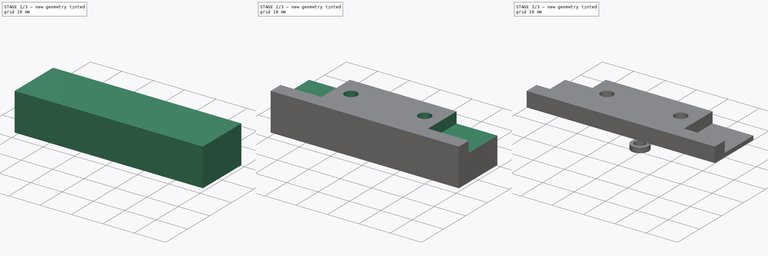
[diagram: build sequence overview — one tinted view per stage of 3, left to right]
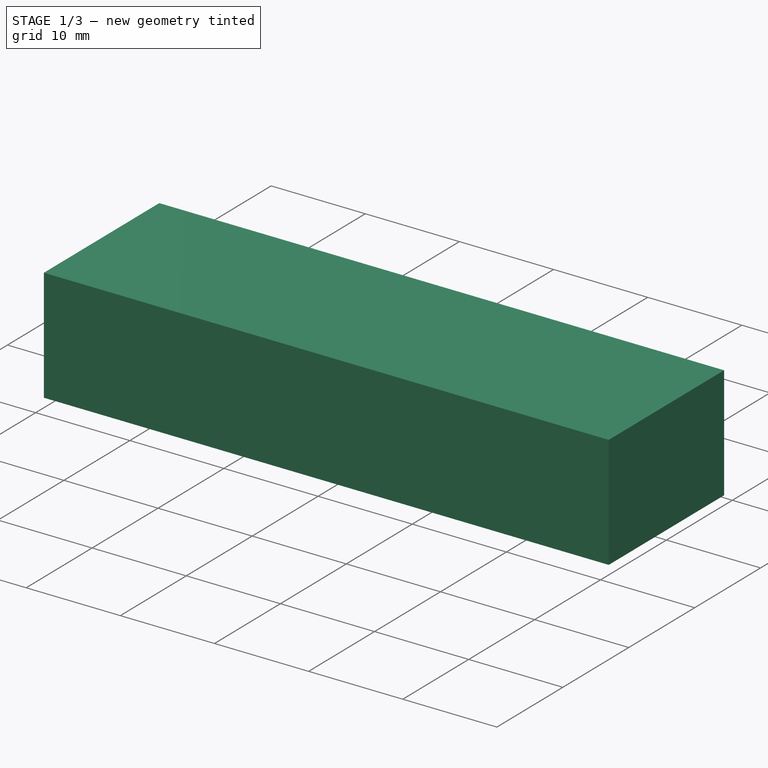
[diagram: stage 1 of 3 — iso view after this stage's code; geometry added in this stage tinted green]
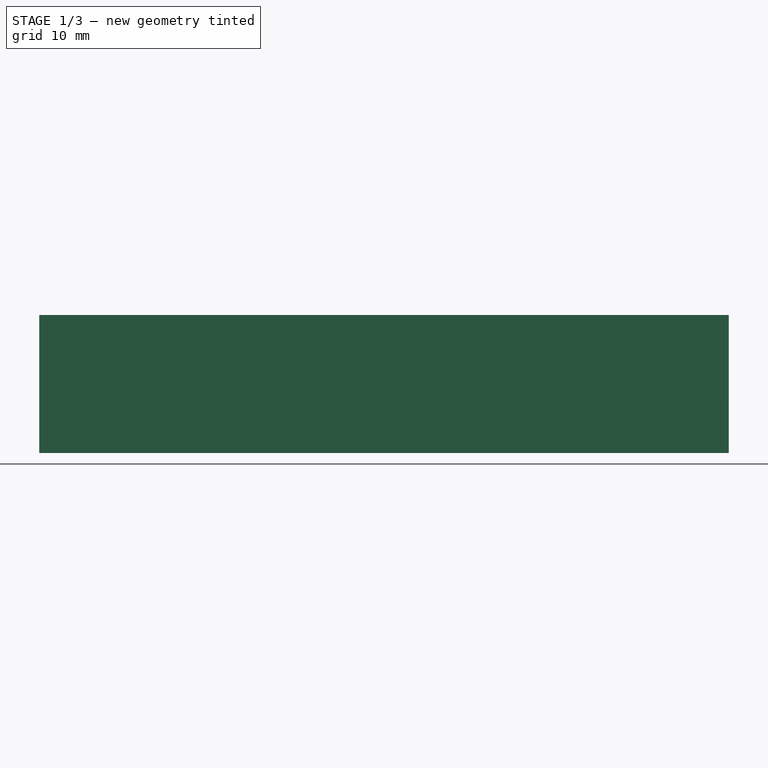
[diagram: stage 1 of 3 — front view after this stage's code; geometry added in this stage tinted green]
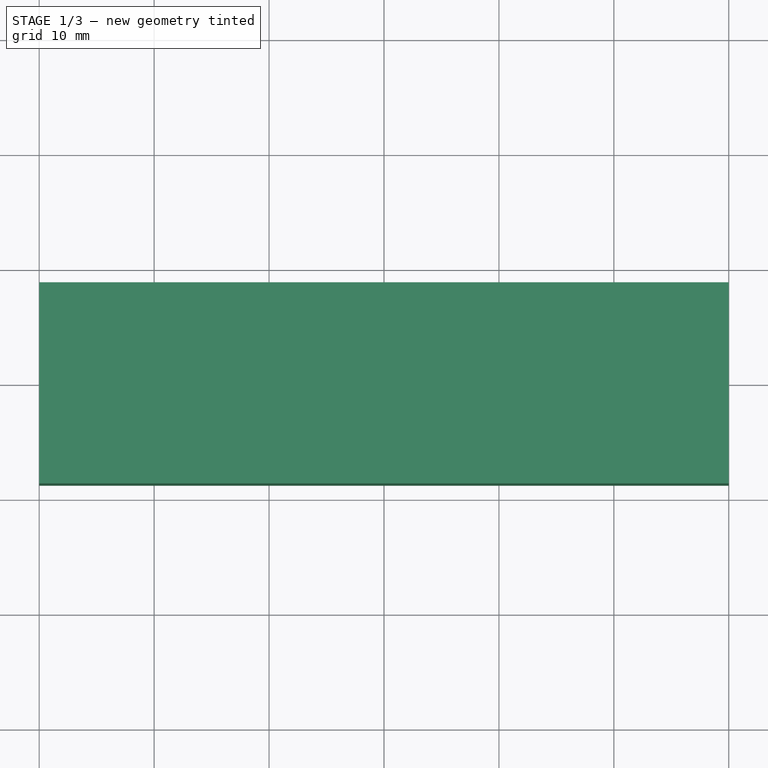
[diagram: stage 1 of 3 — top view after this stage's code; geometry added in this stage tinted green]
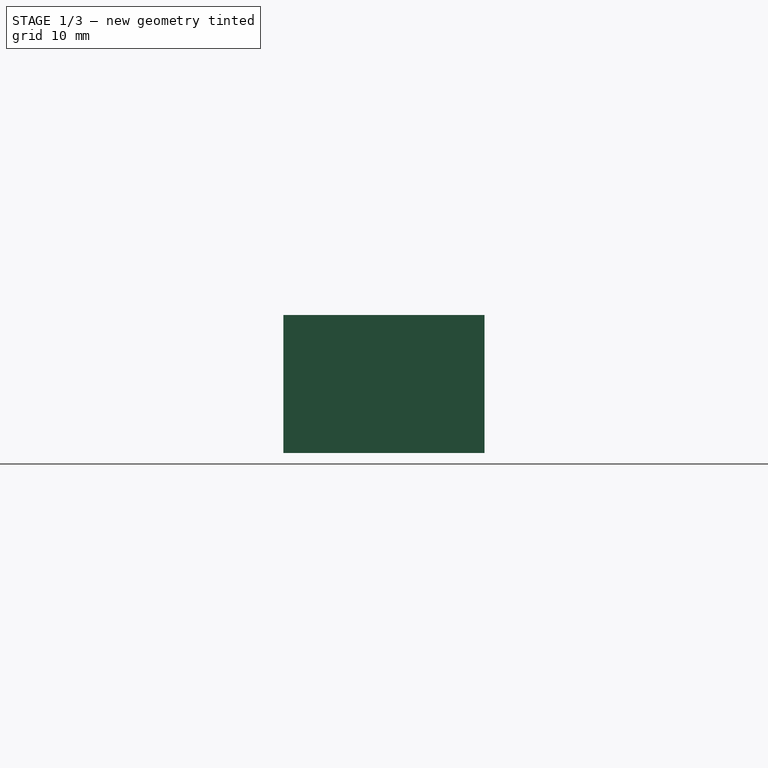
[diagram: stage 1 of 3 — right view after this stage's code; geometry added in this stage tinted green]
FCSTD DOCUMENT  (FreeCAD 0.22R36331 (Git))
Label: kusba mount
License: All rights reserved
LicenseURL: https://en.wikipedia.org/wiki/All_rights_reserved
objects: Sketcher::SketchObject×8, PartDesign::Pocket×6, PartDesign::Pad×2, PartDesign::Body×2
note: 26 computed .brp shape members not serialized (recipe doc carries the construction recipe); baked Part::Feature solids carry a one-line shape summary decoded from their .brp

FEATURE [Sketcher::SketchObject] Sketch
  AttachmentSupport = -> [XY_Plane]
  FullyConstrained = true
  MapMode = 5
  sketch-geometry (4):
    g0: LineSegment StartX=-30 StartY=8.75 StartZ=0 EndX=-30 EndY=-8.75 EndZ=0
    g1: LineSegment StartX=-30 StartY=-8.75 StartZ=0 EndX=30 EndY=-8.75 EndZ=0
    g2: LineSegment StartX=30 StartY=-8.75 StartZ=0 EndX=30 EndY=8.75 EndZ=0
    g3: LineSegment StartX=30 StartY=8.75 StartZ=0 EndX=-30 EndY=8.75 EndZ=0
  constraints (11):
    c: Coincident(g0,g1)
    c: Coincident(g1,g2)
    c: Coincident(g2,g3)
    c: Coincident(g3,g0)
    c: Vertical(g0)
    c: Vertical(g2)
    c: Horizontal(g1)
    c: Horizontal(g3)
    c: DistanceY(g2,g2) = 17.5
    c: DistanceX(g3,g3) = 60
    c: Symmetric(g0,g1,g-1)
FEATURE [PartDesign::Pad] Pad
  Direction = (0,0,1)
  Length = 12
  Length2 = 10
  Profile = -> Sketch
  ReferenceAxis = -> Sketch [N_Axis]
  Suppressed = false
  Type = 0
FEATURE [PartDesign::Body] Body
  Group = -> [Sketch,Pad,Sketch001,Pocket,Sketch002,Pocket001,Sketch003,Pocket002,Sketch004,Pocket003,Sketch005,Pocket004]
  Origin = -> Origin
  Tip = -> Pocket004
FEATURE [Sketcher::SketchObject] Sketch006
  AttachmentSupport = -> [XY_Plane001]
  FullyConstrained = true
  MapMode = 5
  sketch-geometry (1):
    g0: Circle CenterX=0 CenterY=0 CenterZ=0 NormalX=0 NormalY=0 NormalZ=1 AngleXU=0 Radius=2.75
  constraints (2):
    c: Coincident(g0,g-1)
    c: Diameter(g0) = 5.5
FEATURE [PartDesign::Pad] Pad001
  Direction = (0,0,1)
  Length = 1.6
  Length2 = 10
  Profile = -> Sketch006
  ReferenceAxis = -> Sketch006 [N_Axis]
  Suppressed = false
  Type = 0
FEATURE [Sketcher::SketchObject] Sketch007
  AttachmentSupport = -> [Pad001]
  FullyConstrained = true
  MapMode = 5
  Placement = pos=(0,0,1.6) rot=(0,0,1;0rad)
  sketch-geometry (1):
    g0: Circle CenterX=0 CenterY=0 CenterZ=0 NormalX=0 NormalY=0 NormalZ=1 AngleXU=0 Radius=1.75
  constraints (2):
    c: Coincident(g0,g-1)
    c: Diameter(g0) = 3.5
FEATURE [PartDesign::Pocket] Pocket005
  BaseFeature = -> Pad001
  Direction = (0,0,-1)
  Length = 5
  Length2 = 5
  Profile = -> Sketch007
  ReferenceAxis = -> Sketch007 [N_Axis]
  Suppressed = false
  Type = 0
FEATURE [PartDesign::Body] Body001  label="Washer"
  Group = -> [Sketch006,Pad001,Sketch007,Pocket005]
  Origin = -> Origin001
  Tip = -> Pocket005
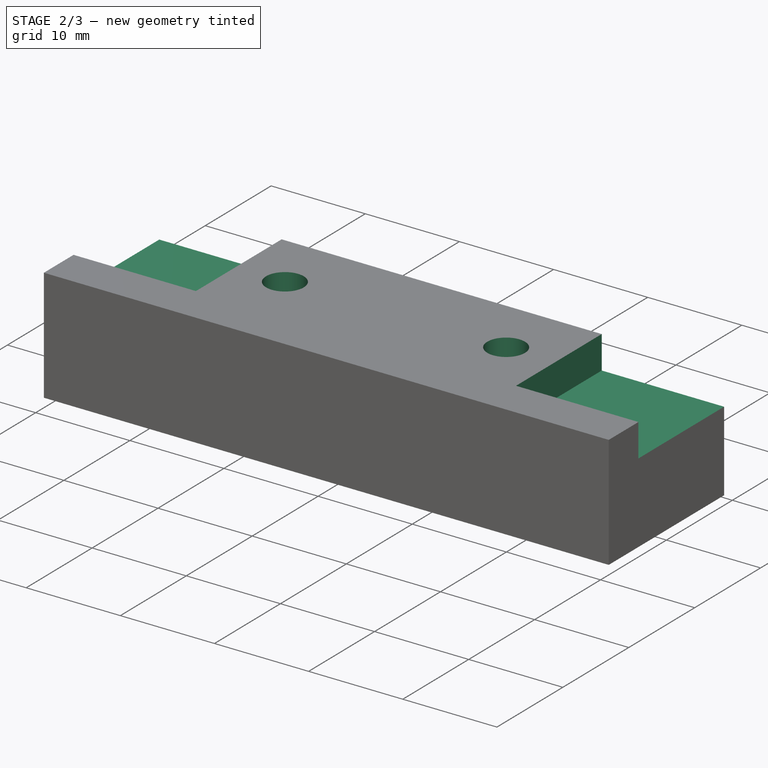
[diagram: stage 2 of 3 — iso view after this stage's code; geometry added in this stage tinted green]
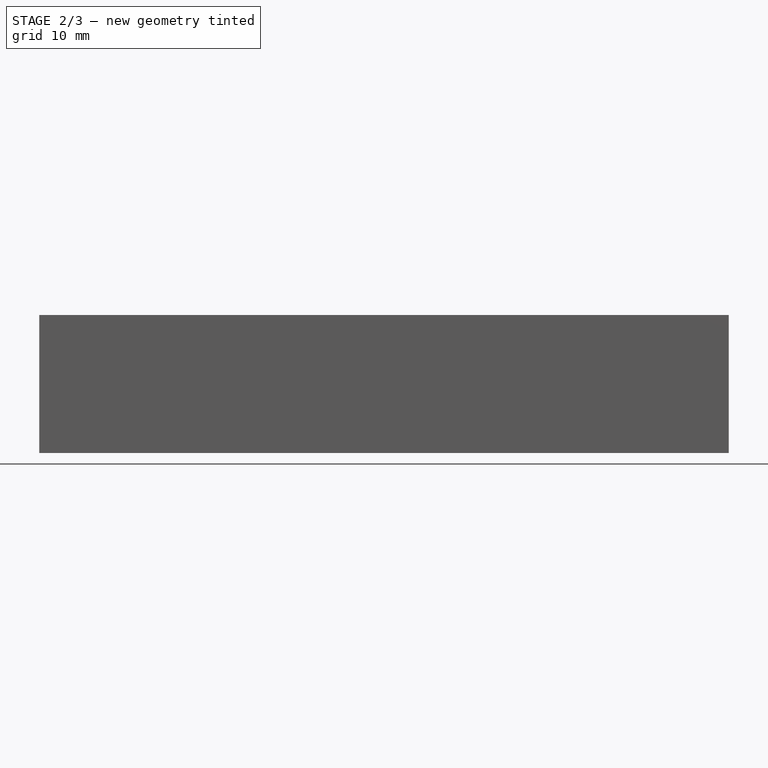
[diagram: stage 2 of 3 — front view after this stage's code; geometry added in this stage tinted green]
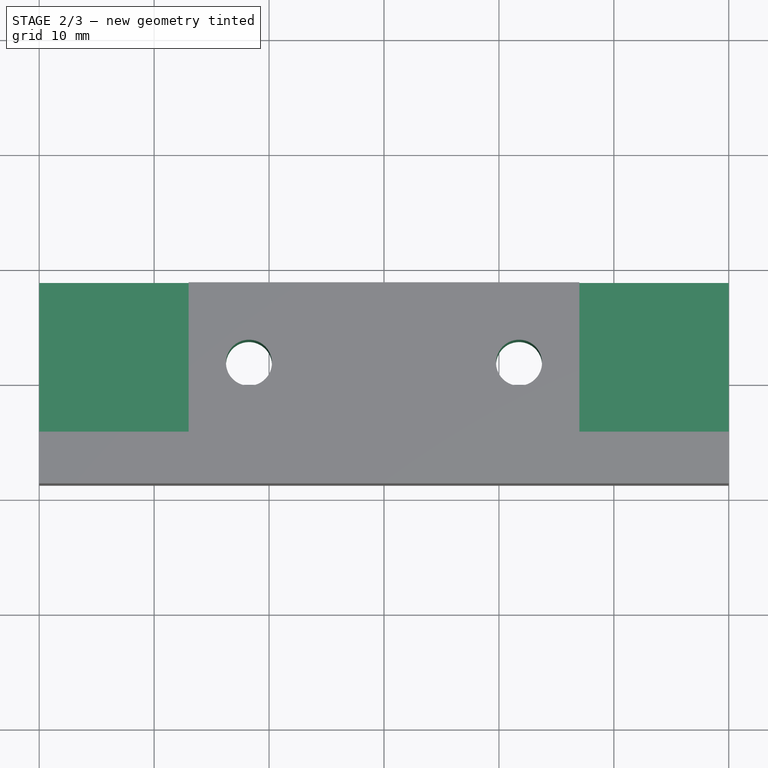
[diagram: stage 2 of 3 — top view after this stage's code; geometry added in this stage tinted green]
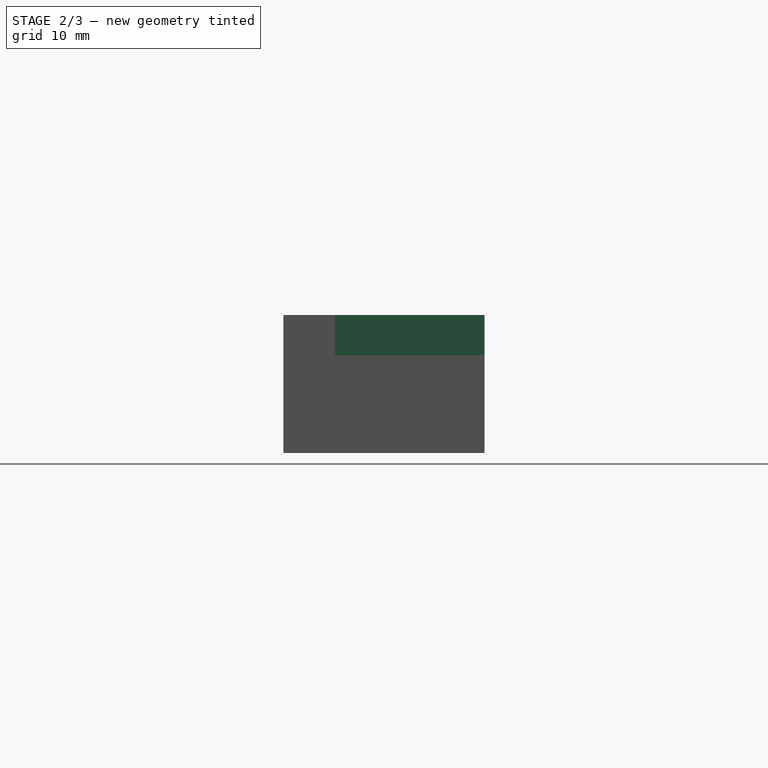
[diagram: stage 2 of 3 — right view after this stage's code; geometry added in this stage tinted green]
FEATURE [Sketcher::SketchObject] Sketch001
  AttachmentSupport = -> [Pad]
  ExternalGeometry = -> [Pad]
  FullyConstrained = true
  MapMode = 5
  Placement = pos=(0,0,12) rot=(0,0,1;0rad)
  sketch-geometry (2):
    g0: Circle CenterX=-11.75 CenterY=1.75 CenterZ=0 NormalX=0 NormalY=0 NormalZ=1 AngleXU=0 Radius=2
    g1: Circle CenterX=11.75 CenterY=1.75 CenterZ=0 NormalX=0 NormalY=0 NormalZ=1 AngleXU=0 Radius=2
  constraints (6):
    c: Diameter(g0) = 4
    c: Equal(g1,g0)
    c: DistanceX(g0,g-1) = 11.75
    c: DistanceX(g-1,g1) = 11.75
    c: DistanceY(g1,g-3) = 7
    c: DistanceY(g0,g-3) = 7
FEATURE [PartDesign::Pocket] Pocket
  BaseFeature = -> Pad
  Direction = (0,0,-1)
  Length = 5
  Length2 = 5
  Profile = -> Sketch001
  ReferenceAxis = -> Sketch001 [N_Axis]
  Suppressed = false
  Type = 1
FEATURE [Sketcher::SketchObject] Sketch002
  AttachmentSupport = -> [Pocket]
  ExternalGeometry = -> [Pocket]
  FullyConstrained = true
  MapMode = 5
  Placement = pos=(0,0,12) rot=(0,0,1;0rad)
  sketch-geometry (8):
    g0: LineSegment StartX=-30 StartY=8.75 StartZ=0 EndX=-30 EndY=-4.25 EndZ=0
    g1: LineSegment StartX=-30 StartY=-4.25 StartZ=0 EndX=-17 EndY=-4.25 EndZ=0
    g2: LineSegment StartX=-17 StartY=-4.25 StartZ=0 EndX=-17 EndY=8.75 EndZ=0
    g3: LineSegment StartX=-17 StartY=8.75 StartZ=0 EndX=-30 EndY=8.75 EndZ=0
    g4: LineSegment StartX=30 StartY=8.75 StartZ=0 EndX=17 EndY=8.75 EndZ=0
    g5: LineSegment StartX=17 StartY=8.75 StartZ=0 EndX=17 EndY=-4.25 EndZ=0
    g6: LineSegment StartX=17 StartY=-4.25 StartZ=0 EndX=30 EndY=-4.25 EndZ=0
    g7: LineSegment StartX=30 StartY=-4.25 StartZ=0 EndX=30 EndY=8.75 EndZ=0
  constraints (22):
    c: Coincident(g0,g1)
    c: Coincident(g1,g2)
    c: Coincident(g2,g3)
    c: Coincident(g3,g0)
    c: Vertical(g0)
    c: Vertical(g2)
    c: Horizontal(g1)
    c: Horizontal(g3)
    c: Coincident(g0,g-3)
    c: DistanceX(g1,g1) = 13
    c: DistanceY(g0,g0) = 13
    c: Coincident(g4,g5)
    c: Coincident(g5,g6)
    c: Coincident(g6,g7)
    c: Coincident(g7,g4)
    c: Horizontal(g4)
    c: Horizontal(g6)
    c: Vertical(g5)
    c: Vertical(g7)
    c: Coincident(g4,g-3)
    c: DistanceX(g6,g6) = 13
    c: Distance(g5,g5) = 13
FEATURE [PartDesign::Pocket] Pocket001
  BaseFeature = -> Pocket
  Direction = (0,0,-1)
  Length = 3.5
  Length2 = 5
  Profile = -> Sketch002
  ReferenceAxis = -> Sketch002 [N_Axis]
  Suppressed = false
  Type = 0
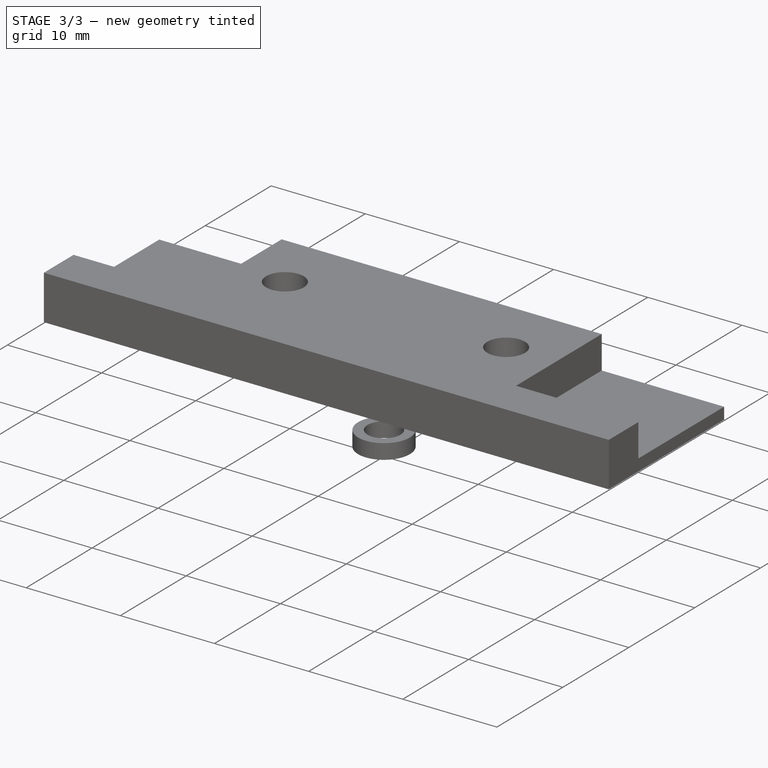
[diagram: stage 3 of 3 — iso view after this stage's code; geometry added in this stage tinted green]
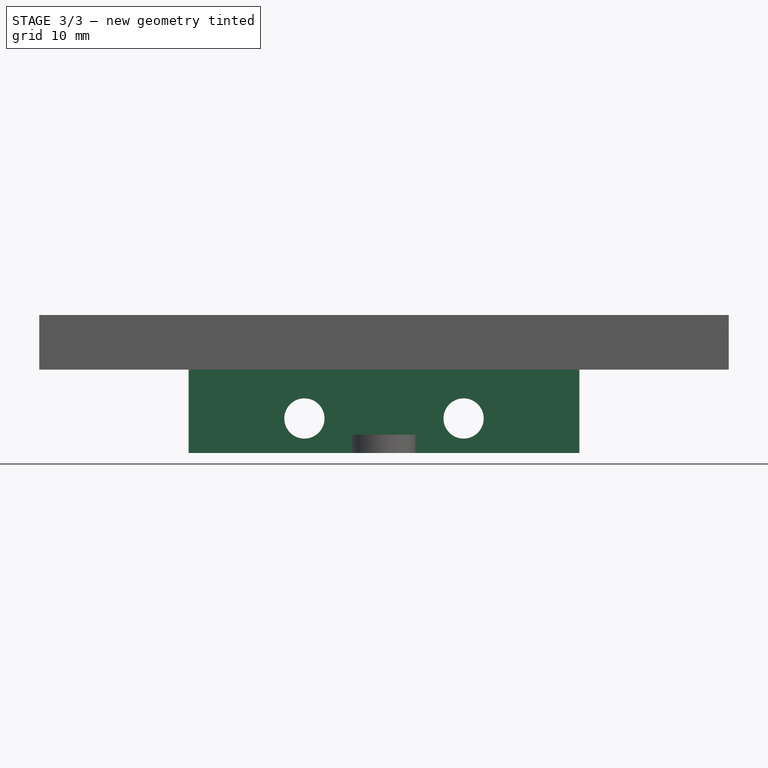
[diagram: stage 3 of 3 — front view after this stage's code; geometry added in this stage tinted green]
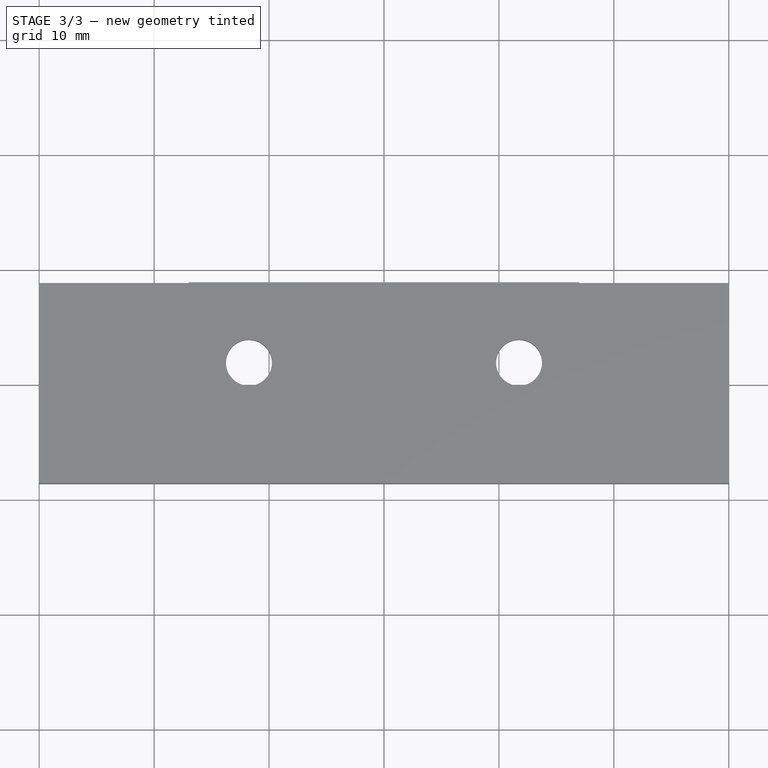
[diagram: stage 3 of 3 — top view after this stage's code; geometry added in this stage tinted green]
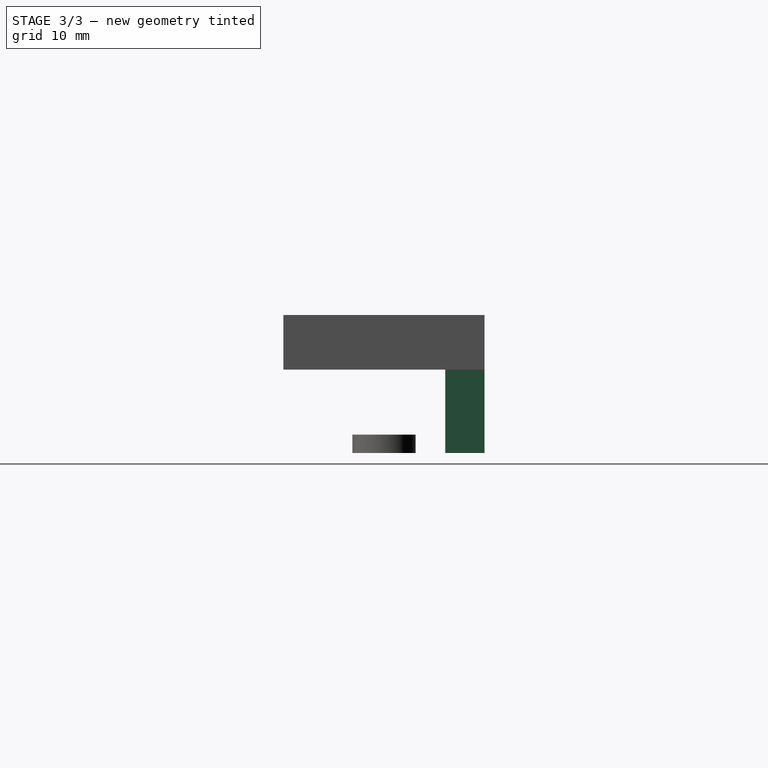
[diagram: stage 3 of 3 — right view after this stage's code; geometry added in this stage tinted green]
FEATURE [Sketcher::SketchObject] Sketch003
  AttachmentSupport = -> [Pocket001]
  ExternalGeometry = -> [Pocket001]
  FullyConstrained = false
  MapMode = 5
  Placement = pos=(0,0,0) rot=(1,0,0;3.14159rad)
  sketch-geometry (8):
    g0: LineSegment StartX=-30 StartY=8.75 StartZ=0 EndX=-30 EndY=-8.75 EndZ=0
    g1: LineSegment StartX=30 StartY=-8.75 StartZ=0 EndX=30 EndY=8.75 EndZ=0
    g2: LineSegment StartX=30 StartY=8.75 StartZ=0 EndX=-30 EndY=8.75 EndZ=0
    g3: LineSegment StartX=-30 StartY=-8.75 StartZ=0 EndX=-17 EndY=-8.75 EndZ=0
    g4: LineSegment StartX=-17 StartY=-8.75 StartZ=0 EndX=-17 EndY=-5.32545 EndZ=0
    g5: LineSegment StartX=-17 StartY=-5.32545 StartZ=0 EndX=17 EndY=-5.32545 EndZ=0
    g6: LineSegment StartX=17 StartY=-5.32545 StartZ=0 EndX=17 EndY=-8.75 EndZ=0
    g7: LineSegment StartX=17 StartY=-8.75 StartZ=0 EndX=30 EndY=-8.75 EndZ=0
  constraints (22):
    c: Coincident(g1,g2)
    c: Coincident(g2,g0)
    c: Vertical(g0)
    c: Vertical(g1)
    c: Horizontal(g2)
    c: Coincident(g0,g-3)
    c: DistanceX(g2,g2) = 60
    c: DistanceY(g0,g0) = 17.5
    c: Equal(g1,g0)
    c: Coincident(g0,g3)
    c: Horizontal(g3)
    c: Coincident(g3,g4)
    c: Coincident(g4,g5)
    c: Horizontal(g5)
    c: Coincident(g5,g6)
    c: Coincident(g6,g7)
    c: Coincident(g7,g1)
    c: Horizontal(g7)
    c: Vertical(g6)
    c: Vertical(g4)
    c: DistanceX(g3,g3) = 13
    c: Equal(g7,g3)
FEATURE [PartDesign::Pocket] Pocket002
  BaseFeature = -> Pocket001
  Direction = (0,0,1)
  Length = 7.25
  Length2 = 5
  Profile = -> Sketch003
  ReferenceAxis = -> Sketch003 [N_Axis]
  Suppressed = false
  Type = 0
FEATURE [Sketcher::SketchObject] Sketch004
  AttachmentSupport = -> [Pocket002]
  ExternalGeometry = -> [Pocket002]
  FullyConstrained = false
  MapMode = 5
  Placement = pos=(0,0,7.25) rot=(1,0,0;3.14159rad)
  sketch-geometry (14):
    g0: LineSegment StartX=-9.27198 StartY=-3.44098 StartZ=0 EndX=-9.04656 EndY=-0.449458 EndZ=0
    g1: LineSegment StartX=-9.04656 StartY=-0.449458 StartZ=0 EndX=-11.5246 EndY=1.24152 EndZ=0
    g2: LineSegment StartX=-11.5246 StartY=1.24152 StartZ=0 EndX=-14.228 EndY=-0.059023 EndZ=0
    g3: LineSegment StartX=-14.228 StartY=-0.059023 StartZ=0 EndX=-14.4534 EndY=-3.05054 EndZ=0
    g4: LineSegment StartX=-14.4534 StartY=-3.05054 StartZ=0 EndX=-11.9754 EndY=-4.74152 EndZ=0
    g5: LineSegment StartX=-11.9754 StartY=-4.74152 StartZ=0 EndX=-9.27198 EndY=-3.44098 EndZ=0
    g6: Circle CenterX=-11.75 CenterY=-1.75 CenterZ=0 NormalX=0 NormalY=0 NormalZ=1 AngleXU=0 Radius=3
    g7: LineSegment StartX=14.316 StartY=-3.30417 StartZ=0 EndX=14.379 EndY=-0.30483 EndZ=0
    g8: LineSegment StartX=14.379 StartY=-0.30483 StartZ=0 EndX=11.8129 EndY=1.24934 EndZ=0
    g9: LineSegment StartX=11.8129 StartY=1.24934 StartZ=0 EndX=9.18396 EndY=-0.19583 EndZ=0
    g10: LineSegment StartX=9.18396 StartY=-0.19583 StartZ=0 EndX=9.12103 EndY=-3.19517 EndZ=0
    g11: LineSegment StartX=9.12103 StartY=-3.19517 StartZ=0 EndX=11.6871 EndY=-4.74934 EndZ=0
    g12: LineSegment StartX=11.6871 StartY=-4.74934 StartZ=0 EndX=14.316 EndY=-3.30417 EndZ=0
    g13: Circle CenterX=11.75 CenterY=-1.75 CenterZ=0 NormalX=0 NormalY=0 NormalZ=1 AngleXU=0 Radius=3
  constraints (32):
    c: Coincident(g0,g1)
    c: Coincident(g1,g2)
    c: Coincident(g2,g3)
    c: Coincident(g3,g4)
    c: Coincident(g4,g5)
    c: Coincident(g5,g0)
    c: Equal(g0, g1-g5) x5
    c: PointOnObject(g0,g6)
    c: PointOnObject(g1,g6)
    c: PointOnObject(g2,g6)
    c: PointOnObject(g3,g6)
    c: PointOnObject(g4,g6)
    c: PointOnObject(g5,g6)
    c: Diameter(g6) = 6
    c: DistanceX(g6,g-1) = 11.75
    c: DistanceY(g-4,g6) = 7
    c: Coincident(g7,g8)
    c: Coincident(g8,g9)
    c: Coincident(g9,g10)
    c: Coincident(g10,g11)
    c: Coincident(g11,g12)
    c: Coincident(g12,g7)
    c: Equal(g7, g8-g12) x5
    c: PointOnObject(g7,g13)
    c: PointOnObject(g8,g13)
    c: PointOnObject(g9,g13)
    c: PointOnObject(g10,g13)
    c: PointOnObject(g11,g13)
    c: PointOnObject(g12,g13)
    c: Diameter(g13) = 6
    c: DistanceX(g-1,g13) = 11.75
    c: DistanceY(g-3,g13) = 7
FEATURE [PartDesign::Pocket] Pocket003
  BaseFeature = -> Pocket002
  Direction = (0,0,1)
  Length = 2
  Length2 = 5
  Profile = -> Sketch004
  ReferenceAxis = -> Sketch004 [N_Axis]
  Suppressed = false
  Type = 0
FEATURE [Sketcher::SketchObject] Sketch005
  AttachmentSupport = -> [Pocket003]
  ExternalGeometry = -> [Pocket003]
  FullyConstrained = true
  MapMode = 5
  Placement = pos=(0,5.32545,0) rot=(1,0,0;1.5708rad)
  sketch-geometry (2):
    g0: Circle CenterX=-6.925 CenterY=3 CenterZ=0 NormalX=0 NormalY=0 NormalZ=1 AngleXU=0 Radius=1.75
    g1: Circle CenterX=6.925 CenterY=3 CenterZ=0 NormalX=0 NormalY=0 NormalZ=1 AngleXU=0 Radius=1.75
  constraints (5):
    c: Diameter(g0) = 3.5
    c: Equal(g0,g1)
    c: DistanceX(g0,g1) = 13.85
    c: Symmetric(g0,g1,g-2)
    c: DistanceY(g-3,g0) = 3
FEATURE [PartDesign::Pocket] Pocket004
  BaseFeature = -> Pocket003
  Direction = (0,1,-2e-16)
  Length = 5
  Length2 = 5
  Profile = -> Sketch005
  ReferenceAxis = -> Sketch005 [N_Axis]
  Suppressed = false
  Type = 0
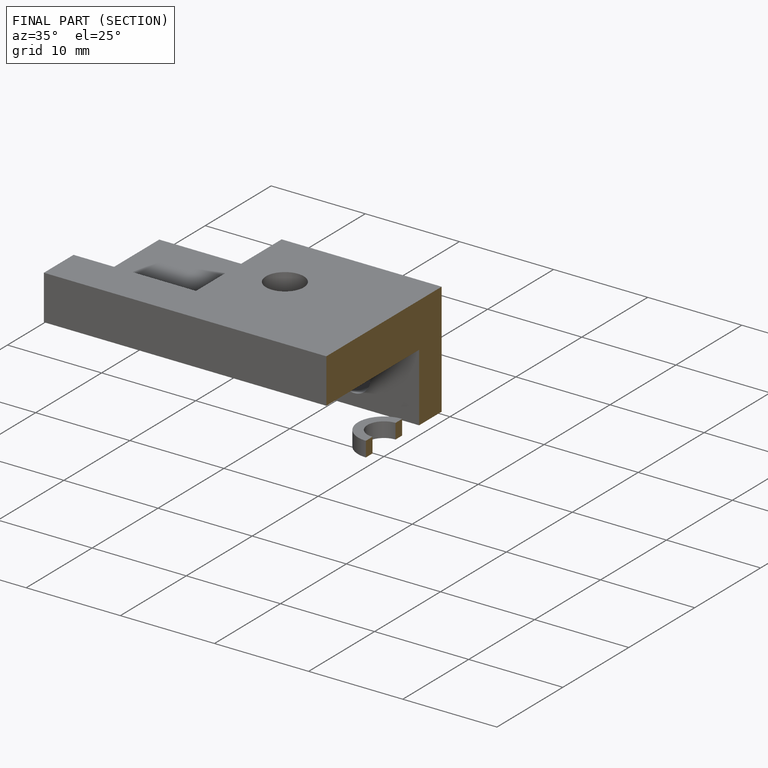
[diagram: finished part — half-section view (interior)]
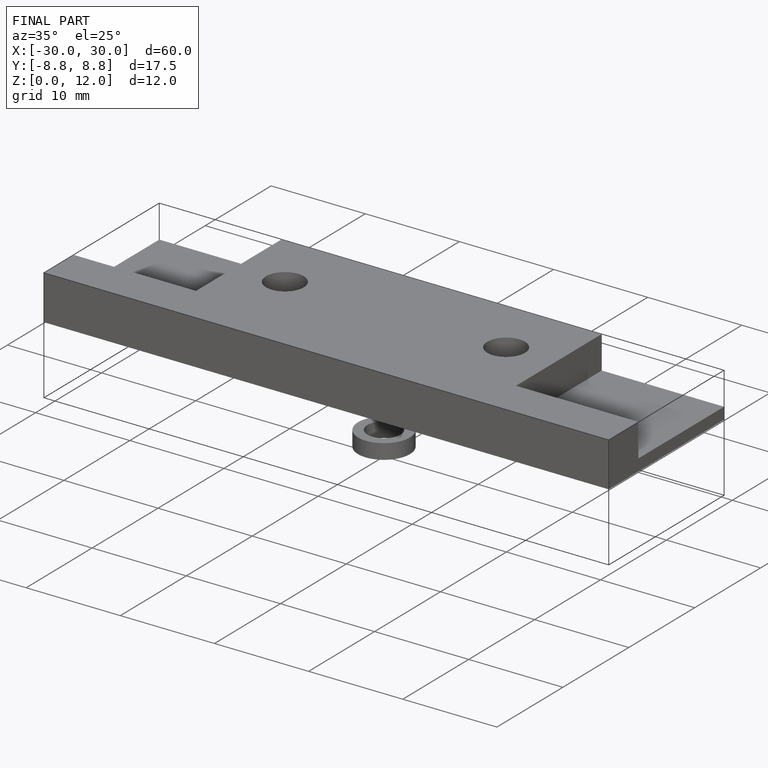
[diagram: finished part — iso view with bounding-box wireframe]
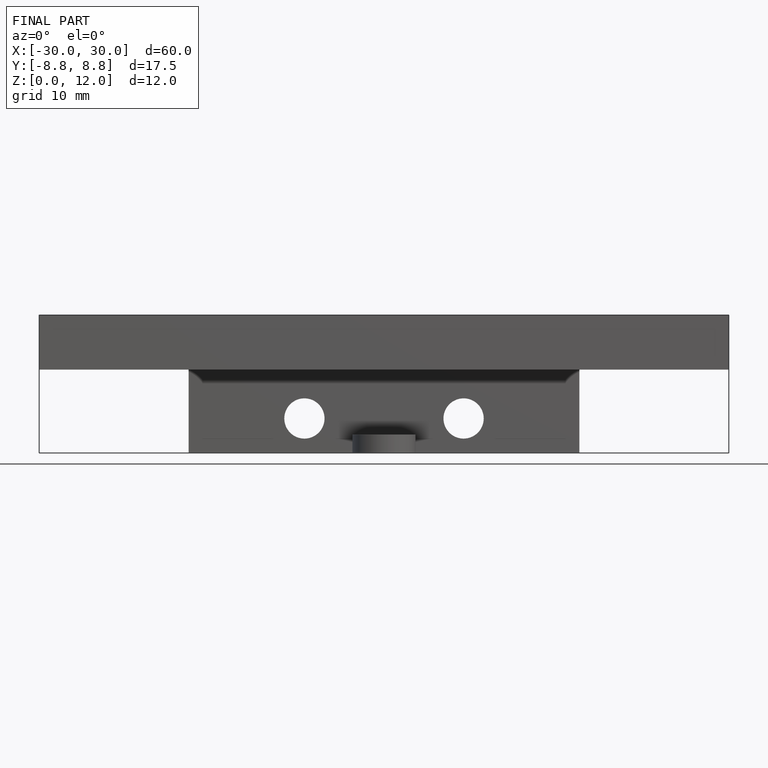
[diagram: finished part — front view with bounding-box wireframe]
